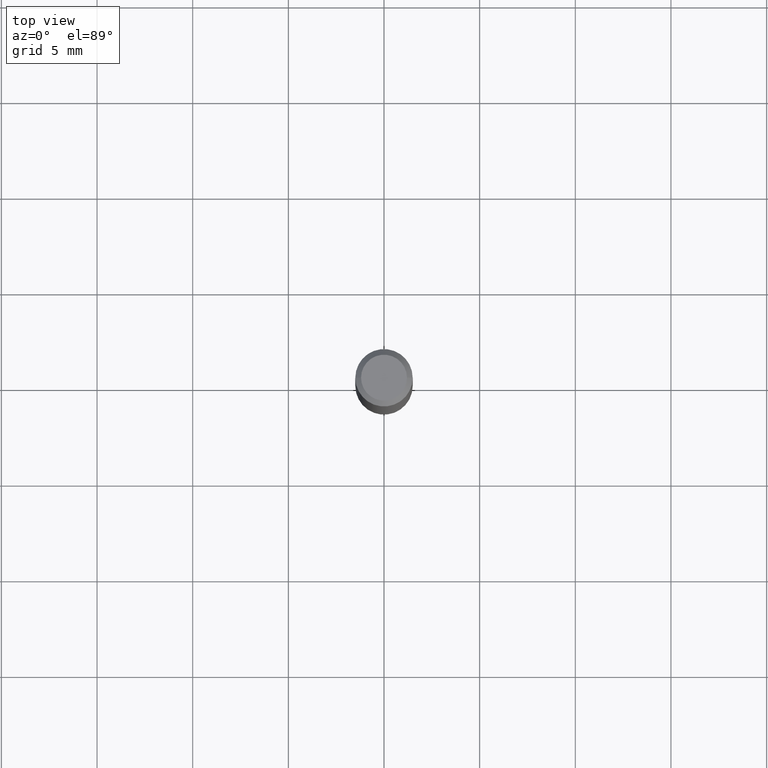
[diagram: clean part render]
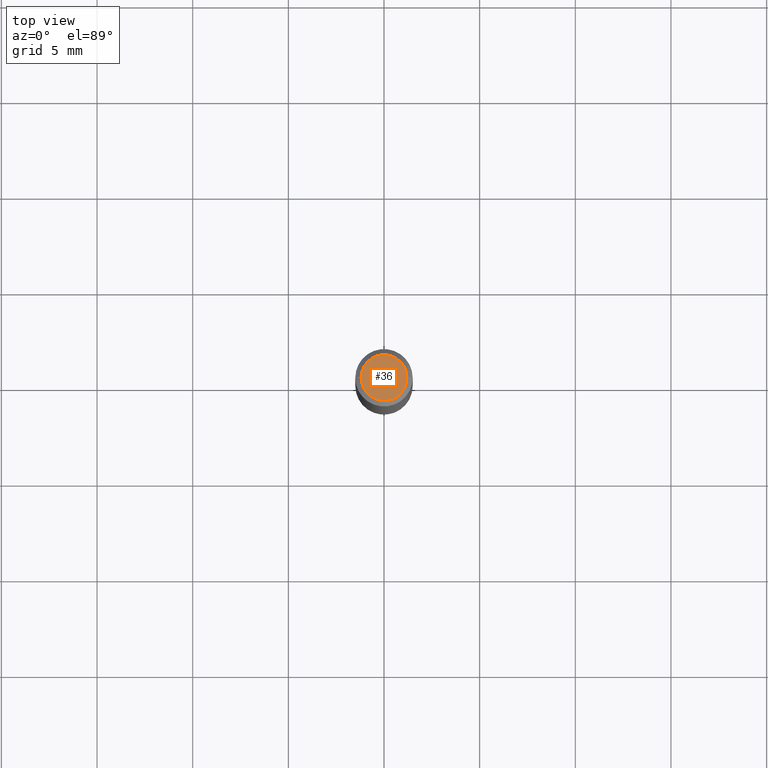
[diagram: same view with one face highlighted and labeled with its STEP entity id]
A machine part, top view. The second image highlights one B-rep face of the part: STEP entity #36.
In plain terms, the highlighted planar face has unit normal (0, -0, -1).
Its self-contained STEP definition (entity closure, byte-faithful):
#31 = CIRCLE ( 'NONE', #97, 0.04724000000000000421 ) ;
#36 = ADVANCED_FACE ( 'NONE', ( #182 ), #251, .F. ) ;
#38 = DIRECTION ( 'NONE',  ( -2.445468806185136597E-29, 3.491481338843145583E-15, 1.000000000000000000 ) ) ;
#42 = DIRECTION ( 'NONE',  ( -2.445468806185136597E-29, 3.491481338843145583E-15, 1.000000000000000000 ) ) ;
#97 = AXIS2_PLACEMENT_3D ( 'NONE', #380, #38, #421 ) ;
#133 = ORIENTED_EDGE ( 'NONE', *, *, #239, .T. ) ;
#172 = VERTEX_POINT ( 'NONE', #190 ) ;
#182 = FACE_OUTER_BOUND ( 'NONE', #238, .T. ) ;
#188 = CARTESIAN_POINT ( 'NONE',  ( 4.132873053354867254E-48, -5.900647395337818946E-34, -1.690012582823346072E-19 ) ) ;
#190 = CARTESIAN_POINT ( 'NONE',  ( -0.04724000000000000421, 3.504923541997677355E-16, -3.380025165670481712E-19 ) ) ;
#238 = EDGE_LOOP ( 'NONE', ( #243, #133 ) ) ;
#239 = EDGE_CURVE ( 'NONE', #316, #172, #430, .T. ) ;
#243 = ORIENTED_EDGE ( 'NONE', *, *, #249, .T. ) ;
#249 = EDGE_CURVE ( 'NONE', #172, #316, #31, .T. ) ;
#251 = PLANE ( 'NONE',  #429 ) ;
#256 = DIRECTION ( 'NONE',  ( 2.438088387897960049E-29, -3.491481338843145188E-15, -1.000000000000000000 ) ) ;
#290 = DIRECTION ( 'NONE',  ( -1.000000000000000000, 6.982962677686265922E-15, -4.876176775795935793E-29 ) ) ;
#303 = AXIS2_PLACEMENT_3D ( 'NONE', #455, #42, #420 ) ;
#316 = VERTEX_POINT ( 'NONE', #476 ) ;
#380 = CARTESIAN_POINT ( 'NONE',  ( 8.265746106709734507E-48, -1.180129479067563789E-33, -3.380025165646692144E-19 ) ) ;
#420 = DIRECTION ( 'NONE',  ( 1.000000000000000000, -6.982962677686266711E-15, 4.876185090822587894E-29 ) ) ;
#421 = DIRECTION ( 'NONE',  ( 1.000000000000000000, -6.982962677686266711E-15, 4.876185090822587894E-29 ) ) ;
#429 = AXIS2_PLACEMENT_3D ( 'NONE', #188, #256, #290 ) ;
#430 = CIRCLE ( 'NONE', #303, 0.04724000000000000421 ) ;
#455 = CARTESIAN_POINT ( 'NONE',  ( 8.265746106709734507E-48, -1.180129479067563789E-33, -3.380025165646692144E-19 ) ) ;
#476 = CARTESIAN_POINT ( 'NONE',  ( 0.04724000000000000421, -3.852183633974369345E-16, -3.380025165621689721E-19 ) ) ;